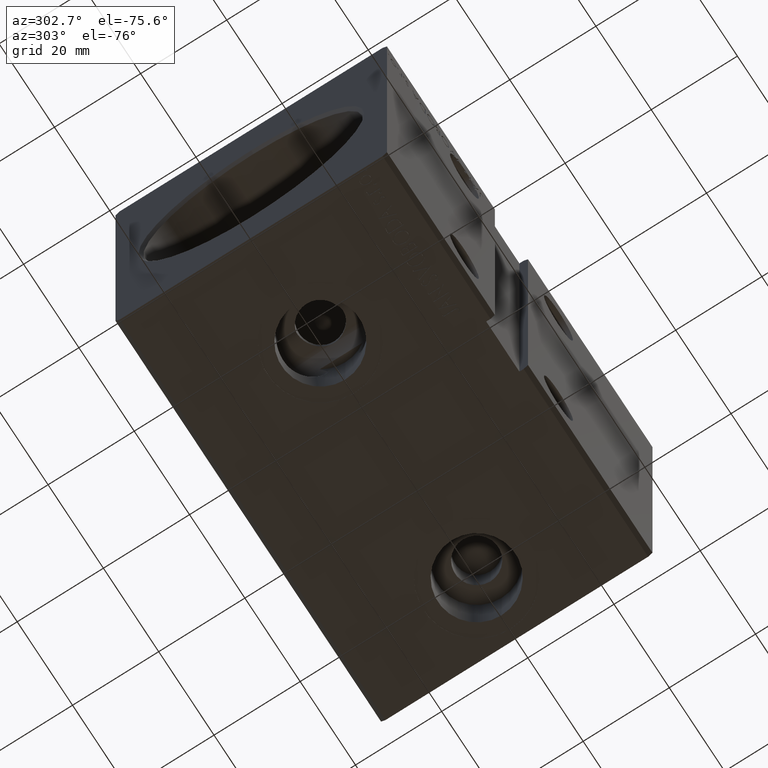
[diagram: clean part render]
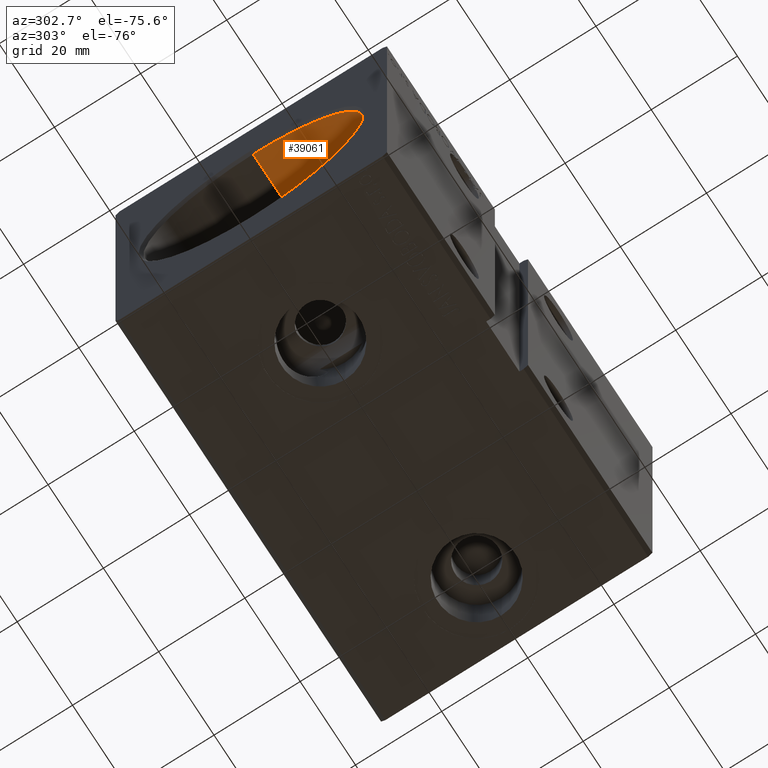
[diagram: same view with one face highlighted and labeled with its STEP entity id]
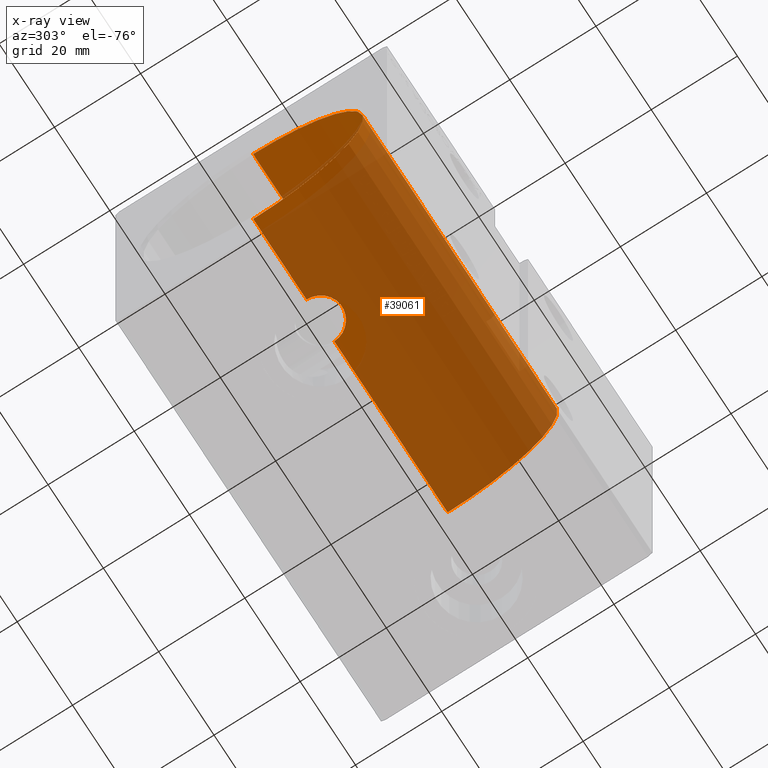
[diagram: x-ray of the same camera — body ghosted, the highlighted face saturated]
A machine part, auxiliary view. The second image highlights one B-rep face of the part: STEP entity #39061.
The next image is the same camera in x-ray: the body ghosted, the highlighted face saturated — about 86% of this face is hidden behind the body in this view.
In plain terms, the highlighted cylindrical surface (partial cylindrical patch) has radius 25.5 mm, axis along (-1, -0, -0).
Its self-contained STEP definition (entity closure, byte-faithful):
#757 = ORIENTED_EDGE ( 'NONE', *, *, #31423, .T. ) ;
#2158 = CARTESIAN_POINT ( 'NONE',  ( 29.33232655771444186, -2.501556218613596894, -25.37741651983997571 ) ) ;
#2170 = AXIS2_PLACEMENT_3D ( 'NONE', #24034, #17414, #2323 ) ;
#2323 = DIRECTION ( 'NONE',  ( 0.000000000000000000, 0.000000000000000000, 1.000000000000000000 ) ) ;
#2408 = AXIS2_PLACEMENT_3D ( 'NONE', #38149, #9856, #22466 ) ;
#2841 = DIRECTION ( 'NONE',  ( 0.000000000000000000, 0.000000000000000000, 1.000000000000000000 ) ) ;
#2981 = CARTESIAN_POINT ( 'NONE',  ( 27.22273364373656435, -4.490803771298839564, -25.10177516855463509 ) ) ;
#3686 = EDGE_CURVE ( 'NONE', #15121, #20873, #6936, .T. ) ;
#5056 = CARTESIAN_POINT ( 'NONE',  ( 30.00000000000000355, -0.3266732516759494609, -25.49999999999999645 ) ) ;
#5269 = CARTESIAN_POINT ( 'NONE',  ( 25.33271175706340017, -4.999829533686947158, -25.00503358654130182 ) ) ;
#5480 = CARTESIAN_POINT ( 'NONE',  ( 21.23681170474775115, -3.308176139882800904, -25.28556396337236478 ) ) ;
#5687 = CARTESIAN_POINT ( 'NONE',  ( 28.76785387263716487, -3.302949047103984626, -25.28625568698655357 ) ) ;
#6936 = LINE ( 'NONE', #16238, #12416 ) ;
#7555 = CARTESIAN_POINT ( 'NONE',  ( 71.00000000000000000, 0.000000000000000000, 25.50000000000000000 ) ) ;
#7734 = CARTESIAN_POINT ( 'NONE',  ( 71.00000000000000000, 0.000000000000000000, 25.50000000000000000 ) ) ;
#8583 = CARTESIAN_POINT ( 'NONE',  ( 20.00000000000000000, -3.134036610811149934E-15, -25.50000000000000000 ) ) ;
#8649 = CYLINDRICAL_SURFACE ( 'NONE', #40644, 25.50000000000000000 ) ;
#8989 = CARTESIAN_POINT ( 'NONE',  ( 22.49672846186155084, -4.340583986548105955, -25.12853381903803296 ) ) ;
#9191 = CARTESIAN_POINT ( 'NONE',  ( 27.50941100923842342, -4.336919931554135133, -25.12916224008248989 ) ) ;
#9856 = DIRECTION ( 'NONE',  ( -1.000000000000000000, 0.000000000000000000, 0.000000000000000000 ) ) ;
#10179 = CARTESIAN_POINT ( 'NONE',  ( 30.00000000000000355, -2.053431075764368079E-15, -25.50000000000000000 ) ) ;
#11355 = ORIENTED_EDGE ( 'NONE', *, *, #11943, .T. ) ;
#11669 = CARTESIAN_POINT ( 'NONE',  ( 24.67243166382208130, -5.000169143574051844, -25.00496567815354609 ) ) ;
#11943 = EDGE_CURVE ( 'NONE', #20873, #37086, #27770, .T. ) ;
#12283 = CARTESIAN_POINT ( 'NONE',  ( 24.34727416566665426, -4.967958275937109036, -25.01146907855240187 ) ) ;
#12416 = VECTOR ( 'NONE', #16434, 1000.000000000000000 ) ;
#12492 = CARTESIAN_POINT ( 'NONE',  ( 21.95560836409584127, -3.969695705473134328, -25.18933406125756136 ) ) ;
#12885 = ORIENTED_EDGE ( 'NONE', *, *, #22941, .F. ) ;
#13052 = VECTOR ( 'NONE', #20326, 1000.000000000000000 ) ;
#14772 = CARTESIAN_POINT ( 'NONE',  ( 26.76784274116303664, -4.679924986935658282, -25.06695854901227705 ) ) ;
#14861 = ORIENTED_EDGE ( 'NONE', *, *, #32670, .F. ) ;
#15121 = VERTEX_POINT ( 'NONE', #23548 ) ;
#15190 = CARTESIAN_POINT ( 'NONE',  ( 28.97413050256164624, -3.051801247210608636, -25.31820435816342041 ) ) ;
#15253 = EDGE_CURVE ( 'NONE', #37086, #20679, #34490, .T. ) ;
#15391 = CARTESIAN_POINT ( 'NONE',  ( 28.05067996372971351, -3.974842118235212496, -25.18897178362393063 ) ) ;
#15596 = CARTESIAN_POINT ( 'NONE',  ( 26.29828762041595169, -4.831282917304133839, -25.03819206171131739 ) ) ;
#16046 = CIRCLE ( 'NONE', #2170, 25.50000000000000000 ) ;
#16238 = CARTESIAN_POINT ( 'NONE',  ( 71.00000000000000000, 3.122849337825750222E-15, -25.50000000000000000 ) ) ;
#16434 = DIRECTION ( 'NONE',  ( -1.000000000000000000, -0.000000000000000000, -0.000000000000000000 ) ) ;
#17414 = DIRECTION ( 'NONE',  ( -1.000000000000000000, 0.000000000000000000, 0.000000000000000000 ) ) ;
#17659 = CARTESIAN_POINT ( 'NONE',  ( 29.96829776405773416, -0.6519272824187054560, -25.49372444077081568 ) ) ;
#17874 = CARTESIAN_POINT ( 'NONE',  ( 29.24716368081815077, -2.643558528632583116, -25.36297180929799211 ) ) ;
#18083 = CARTESIAN_POINT ( 'NONE',  ( 20.50886572274822939, -2.221652221118979309, -25.40482536946835879 ) ) ;
#18287 = CARTESIAN_POINT ( 'NONE',  ( 26.61179645930328874, -4.735922037590719391, -25.05640434699362729 ) ) ;
#19271 = ORIENTED_EDGE ( 'NONE', *, *, #3686, .T. ) ;
#20326 = DIRECTION ( 'NONE',  ( -1.000000000000000000, -0.000000000000000000, -0.000000000000000000 ) ) ;
#20478 = ORIENTED_EDGE ( 'NONE', *, *, #15253, .T. ) ;
#20679 = VERTEX_POINT ( 'NONE', #35450 ) ;
#20873 = VERTEX_POINT ( 'NONE', #10179 ) ;
#21683 = CARTESIAN_POINT ( 'NONE',  ( 71.00000000000000000, 3.122849337825750222E-15, -25.50000000000000000 ) ) ;
#21858 = DIRECTION ( 'NONE',  ( -1.000000000000000000, -0.000000000000000000, -0.000000000000000000 ) ) ;
#21998 = CARTESIAN_POINT ( 'NONE',  ( 29.83944850034864160, -1.299511472198740858, -25.46892744065090852 ) ) ;
#22466 = DIRECTION ( 'NONE',  ( 0.000000000000000000, 0.000000000000000000, -1.000000000000000000 ) ) ;
#22941 = EDGE_CURVE ( 'NONE', #15121, #27456, #16046, .T. ) ;
#23548 = CARTESIAN_POINT ( 'NONE',  ( 71.00000000000000000, 3.122849337825750222E-15, -25.50000000000000000 ) ) ;
#24034 = CARTESIAN_POINT ( 'NONE',  ( 71.00000000000000000, 0.000000000000000000, 0.000000000000000000 ) ) ;
#24280 = CARTESIAN_POINT ( 'NONE',  ( 21.02954942435130903, -3.056826597074164376, -25.31761674205763768 ) ) ;
#24690 = CARTESIAN_POINT ( 'NONE',  ( 20.66259238781106333, -2.509095818013849399, -25.37775294462302611 ) ) ;
#25099 = CARTESIAN_POINT ( 'NONE',  ( 20.03257554820173070, -0.6580119146815509579, -25.49355397310144866 ) ) ;
#25507 = CIRCLE ( 'NONE', #2408, 25.50000000000000000 ) ;
#25917 = EDGE_LOOP ( 'NONE', ( #12885, #19271, #11355, #20478, #757, #14861 ) ) ;
#27378 = CARTESIAN_POINT ( 'NONE',  ( 23.70658478937696501, -4.840840581881120208, -25.03638267321475652 ) ) ;
#27443 = FACE_OUTER_BOUND ( 'NONE', #25917, .T. ) ;
#27456 = VERTEX_POINT ( 'NONE', #7555 ) ;
#27588 = CARTESIAN_POINT ( 'NONE',  ( 26.13997313152262691, -4.871040549364068717, -25.03046192760551492 ) ) ;
#27770 = B_SPLINE_CURVE_WITH_KNOTS ( 'NONE', 3,
 ( #33364, #5056, #17659, #21998, #33787, #31293, #28196, #2158, #17874, #15190, #5687, #30469, #15391, #9191, #2981, #14772, #18287, #15596, #27588, #37688, #5269, #11669, #12283, #27378, #40783, #27992, #8989, #40576, #12492, #39958, #34191, #5480, #24280, #24690, #18083, #37288, #30882, #25099, #36881, #8583 ),
 .UNSPECIFIED., .F., .F.,
 ( 4, 2, 2, 2, 2, 2, 2, 2, 2, 2, 2, 2, 2, 2, 2, 2, 2, 2, 2, 4 ),
 ( 0.01567029508864546325, 0.01664943652689812245, 0.01762857796515077818, 0.01811814868427710778, 0.01860771940340343739, 0.01958686084165608965, 0.02056600227990874191, 0.02154514371816139418, 0.02203471443728771684, 0.02252428515641404297, 0.02350342659466668482, 0.02448256803291933015, 0.02546170947117196853, 0.02644085090942461386, 0.02693042162855093652, 0.02741999234767725918, 0.02839913378592990451, 0.02937827522418254983, 0.03035741666243519515, 0.03133655810068784048 ),
 .UNSPECIFIED. ) ;
#27992 = CARTESIAN_POINT ( 'NONE',  ( 22.78377470733302701, -4.493911346903327164, -25.10121429600309284 ) ) ;
#28196 = CARTESIAN_POINT ( 'NONE',  ( 29.48678119833789424, -2.212607374977239694, -25.40424022364233281 ) ) ;
#30469 = CARTESIAN_POINT ( 'NONE',  ( 28.30725932384561716, -3.764071064439164616, -25.22173602465294096 ) ) ;
#30882 = CARTESIAN_POINT ( 'NONE',  ( 20.16166048922409715, -1.303363396237213090, -25.46871645208387847 ) ) ;
#30947 = CARTESIAN_POINT ( 'NONE',  ( 71.00000000000000000, 0.000000000000000000, 0.000000000000000000 ) ) ;
#31293 = CARTESIAN_POINT ( 'NONE',  ( 29.55651706183134664, -2.065111649610072320, -25.41668911104174100 ) ) ;
#31423 = EDGE_CURVE ( 'NONE', #20679, #37822, #25507, .T. ) ;
#31671 = VECTOR ( 'NONE', #34288, 1000.000000000000000 ) ;
#31767 = CARTESIAN_POINT ( 'NONE',  ( 20.00000000000000000, -3.134036610811149934E-15, -25.50000000000000000 ) ) ;
#32670 = EDGE_CURVE ( 'NONE', #27456, #37822, #36043, .T. ) ;
#33364 = CARTESIAN_POINT ( 'NONE',  ( 30.00000000000000355, -2.053431075764368079E-15, -25.50000000000000000 ) ) ;
#33787 = CARTESIAN_POINT ( 'NONE',  ( 29.74364452971006756, -1.613682749555680918, -25.45068002931551376 ) ) ;
#34191 = CARTESIAN_POINT ( 'NONE',  ( 21.58173429822094747, -3.652651567224052265, -25.23730532580740160 ) ) ;
#34288 = DIRECTION ( 'NONE',  ( -1.000000000000000000, -0.000000000000000000, -0.000000000000000000 ) ) ;
#34490 = LINE ( 'NONE', #21683, #31671 ) ;
#35450 = CARTESIAN_POINT ( 'NONE',  ( 0.7000000000000061728, 3.122849337825750222E-15, -25.50000000000000000 ) ) ;
#36043 = LINE ( 'NONE', #7734, #13052 ) ;
#36881 = CARTESIAN_POINT ( 'NONE',  ( 20.00000000000000000, -0.3311403825124928368, -25.50000000000000355 ) ) ;
#37086 = VERTEX_POINT ( 'NONE', #31767 ) ;
#37288 = CARTESIAN_POINT ( 'NONE',  ( 20.25865882625119596, -1.620404135400492329, -25.45024913596648730 ) ) ;
#37688 = CARTESIAN_POINT ( 'NONE',  ( 25.66040803275929960, -4.966906514807474693, -25.01167889296107560 ) ) ;
#37822 = VERTEX_POINT ( 'NONE', #39677 ) ;
#38149 = CARTESIAN_POINT ( 'NONE',  ( 0.7000000000000061728, 0.000000000000000000, 0.000000000000000000 ) ) ;
#39061 = ADVANCED_FACE ( 'NONE', ( #27443 ), #8649, .F. ) ;
#39677 = CARTESIAN_POINT ( 'NONE',  ( 0.7000000000000061728, 0.000000000000000000, 25.50000000000000000 ) ) ;
#39958 = CARTESIAN_POINT ( 'NONE',  ( 21.70243971348964251, -3.762034101871583491, -25.22118422794690318 ) ) ;
#40576 = CARTESIAN_POINT ( 'NONE',  ( 22.08852511827147325, -4.068178148452549436, -25.17356543801765412 ) ) ;
#40644 = AXIS2_PLACEMENT_3D ( 'NONE', #30947, #21858, #2841 ) ;
#40783 = CARTESIAN_POINT ( 'NONE',  ( 23.38785056554529262, -4.744245771739767470, -25.05510587455231075 ) ) ;